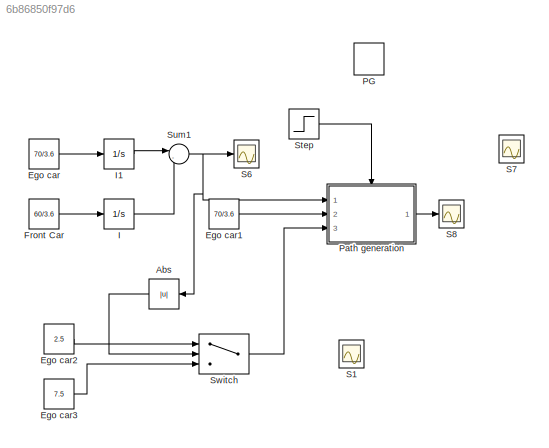
MODEL slx_6b86850f97d6
KIND model
CONFIG StopFcn = plotting\n
BLOCK [Abs] Abs
  SaturateOnIntegerOverflow = off
BLOCK [Constant] Ego car
  Value = 70/3.6
BLOCK [Constant] Ego car1
  Value = 70/3.6
BLOCK [Constant] Ego car2
  Value = 2.5
BLOCK [Constant] Ego car3
  Value = 7.5
BLOCK [Constant] Front Car
  Value = 60/3.6
BLOCK [Integrator] I
  InitialCondition = 70
  Ports = [1, 1]
BLOCK [Integrator] I1
  Ports = [1, 1]
BLOCK [DiscretePulseGenerator] PG
  Period = 3
  Ports = [0, 1]
  PulseType = Time based
  PulseWidth = 5
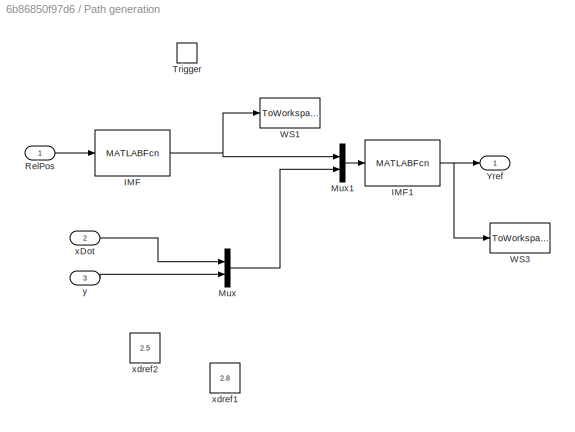
BLOCK [SubSystem] Path generation
  Ports = [3, 1, 0, 1]
  RequestExecContextInheritance = off
BLOCK [MATLABFcn] Path generation/IMF
  MATLABFcn = generateXsp
  Ports = [1, 1]
BLOCK [MATLABFcn] Path generation/IMF1
  MATLABFcn = MPCtrajectory_vehmod
  Ports = [1, 1]
BLOCK [Mux] Path generation/Mux
  DisplayOption = bar
  Inputs = 2
  Ports = [2, 1]
BLOCK [Mux] Path generation/Mux1
  DisplayOption = bar
  Inputs = 2
  Ports = [2, 1]
BLOCK [Inport] Path generation/RelPos
  IconDisplay = Port number
BLOCK [TriggerPort] Path generation/Trigger
  PortDimensions = 1
  Ports = []
  StatesWhenEnabling = held
BLOCK [ToWorkspace] Path generation/WS1
  FixptAsFi = on
  MaxDataPoints = inf
  Ports = [1]
  SampleTime = -1
  Save2DSignal = 3-D array (concatenate along third dimension)
  VariableName = xsp
BLOCK [ToWorkspace] Path generation/WS3
  FixptAsFi = on
  MaxDataPoints = inf
  Ports = [1]
  SampleTime = -1
  Save2DSignal = 3-D array (concatenate along third dimension)
  VariableName = simout
BLOCK [Outport] Path generation/Yref
  IconDisplay = Port number
BLOCK [Inport] Path generation/xDot
  IconDisplay = Port number
  Port = 2
BLOCK [Constant] Path generation/xdref1
  Value = 2.8
BLOCK [Constant] Path generation/xdref2
  Value = 2.5
BLOCK [Inport] Path generation/y
  IconDisplay = Port number
  Port = 3
BLOCK [Scope] S1
  Floating = off
  LimitDataPoints = off
  NumInputPorts = 1
  Ports = [1]
  ShowLegends = off
  YMax = 9
  YMin = 0
BLOCK [Scope] S6
  Floating = off
  LimitDataPoints = off
  NumInputPorts = 1
  Ports = [1]
  SaveName = ScopeData8
  ShowLegends = off
  YMax = 9
  YMin = 0
BLOCK [Scope] S7
  Floating = off
  LimitDataPoints = off
  NumInputPorts = 1
  Ports = [1]
  SaveName = ScopeData9
  ShowLegends = off
  YMax = 9
  YMin = 0
BLOCK [Scope] S8
  Floating = off
  LimitDataPoints = off
  NumInputPorts = 1
  Ports = [1]
  SaveName = ScopeData10
  ShowLegends = off
  YMax = 9
  YMin = 0
BLOCK [Step] Step
  SampleTime = 0
  Time = 0.00001
BLOCK [Sum] Sum1
  IconShape = round
  InputSameDT = off
  Inputs = |-+
  OutDataTypeStr = Inherit: Inherit via internal rule
  Ports = [2, 1]
  SaturateOnIntegerOverflow = off
BLOCK [Switch] Switch
  Criteria = u2 > Threshold
  InputSameDT = off
  SaturateOnIntegerOverflow = off
  Threshold = 5
LINE Abs:1 -> Switch:2
LINE Ego car1:1 -> Path generation:2
LINE Ego car2:1 -> Switch:1
LINE Ego car3:1 -> Switch:3
LINE Ego car:1 -> I1:1
LINE Front Car:1 -> I:1
LINE I1:1 -> Sum1:1
LINE I:1 -> Sum1:2
NET Path generation/IMF1:1 -> Path generation/WS3:1, Path generation/Yref:1
NET Path generation/IMF:1 -> Path generation/Mux1:1, Path generation/WS1:1
LINE Path generation/Mux1:1 -> Path generation/IMF1:1
LINE Path generation/Mux:1 -> Path generation/Mux1:2
LINE Path generation/RelPos:1 -> Path generation/IMF:1
LINE Path generation/xDot:1 -> Path generation/Mux:1
LINE Path generation/y:1 -> Path generation/Mux:2
LINE Path generation:1 -> S8:1
LINE Step:1 -> Path generation:trigger
NET Sum1:1 -> Abs:1, Path generation:1, S6:1
LINE Switch:1 -> Path generation:3
note: NET lines group one-source signal fan-out (src -> all destinations, sorted); 1:1 wires keep LINE
